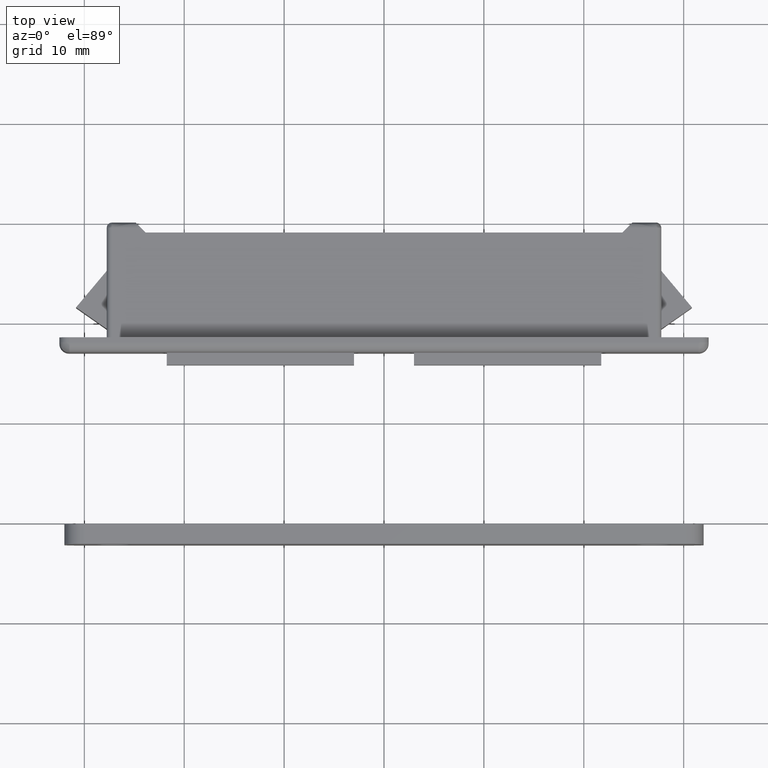
[diagram: clean part render]
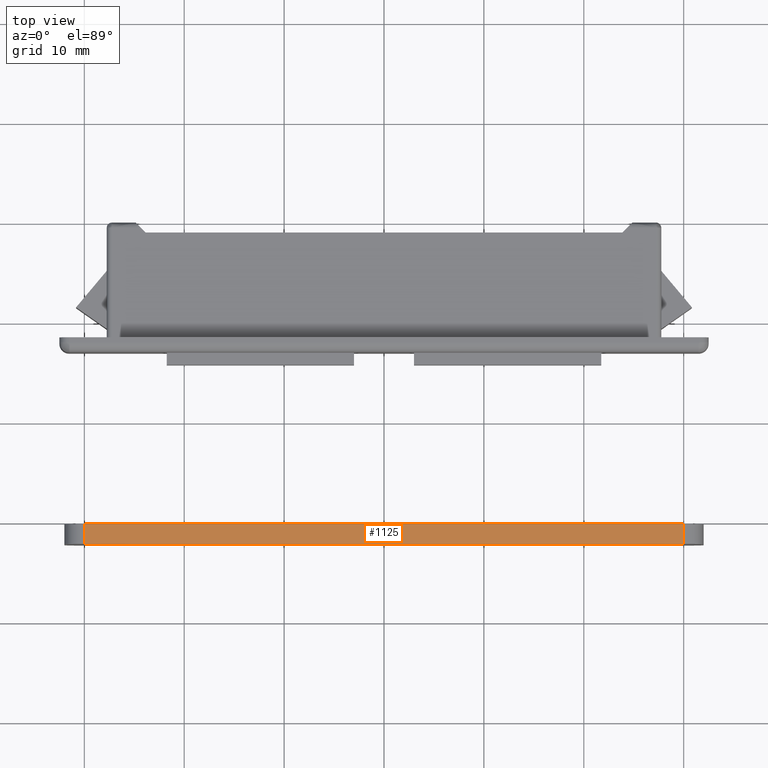
[diagram: same view with one face highlighted and labeled with its STEP entity id]
A machine part, top view. The second image highlights one B-rep face of the part: STEP entity #1125.
In plain terms, the highlighted face is a freeform B-spline surface patch.
Its self-contained STEP definition (entity closure, byte-faithful):
#1053=CARTESIAN_POINT('',(30.0,-30.187369113433899,-5.0));
#1054=VERTEX_POINT('',#1053);
#1076=CARTESIAN_POINT('',(30.0,-32.187369113433903,-5.0));
#1077=VERTEX_POINT('',#1076);
#1090=CARTESIAN_POINT('',(30.0,-32.187369113433903,-5.0));
#1091=CARTESIAN_POINT('',(30.0,-30.187369113433899,-5.0));
#1092=QUASI_UNIFORM_CURVE('',1,(#1090,#1091),.UNSPECIFIED.,.F.,.U.);
#1093=EDGE_CURVE('',#1077,#1054,#1092,.T.);
#1098=CARTESIAN_POINT('',(-32.996998294266653,-32.287270403180663,-5.0));
#1099=CARTESIAN_POINT('',(32.997001417418133,-32.287270403180663,-5.0));
#1100=CARTESIAN_POINT('',(-32.996998294266653,-30.087468252840580,-5.0));
#1101=CARTESIAN_POINT('',(32.997001417418133,-30.087468252840580,-5.0));
#1102=B_SPLINE_SURFACE_WITH_KNOTS('',1,1,((#1098,#1100),(#1099,#1101)),.UNSPECIFIED.,.F.,.F.,.U.,(2,2),(2,2),(0.0,65.993999711684779),(0.0,2.199802150340087),.UNSPECIFIED.);
#1103=CARTESIAN_POINT('',(-29.999999022615700,-30.187369113433899,-4.999999999999780));
#1104=VERTEX_POINT('',#1103);
#1105=CARTESIAN_POINT('',(-29.999999022615700,-30.187369113433899,-4.999999999999780));
#1106=CARTESIAN_POINT('',(30.0,-30.187369113433899,-5.0));
#1107=QUASI_UNIFORM_CURVE('',1,(#1105,#1106),.UNSPECIFIED.,.F.,.U.);
#1108=EDGE_CURVE('',#1104,#1054,#1107,.T.);
#1109=ORIENTED_EDGE('',*,*,#1108,.T.);
#1110=ORIENTED_EDGE('',*,*,#1093,.F.);
#1111=CARTESIAN_POINT('',(-29.999999022615700,-32.187369113433903,-4.999999999999780));
#1112=VERTEX_POINT('',#1111);
#1113=CARTESIAN_POINT('',(-29.999999022615700,-32.187369113433903,-4.999999999999780));
#1114=CARTESIAN_POINT('',(30.0,-32.187369113433903,-5.0));
#1115=QUASI_UNIFORM_CURVE('',1,(#1113,#1114),.UNSPECIFIED.,.F.,.U.);
#1116=EDGE_CURVE('',#1112,#1077,#1115,.T.);
#1117=ORIENTED_EDGE('',*,*,#1116,.F.);
#1118=CARTESIAN_POINT('',(-29.999999022615700,-32.187369113433903,-4.999999999999780));
#1119=CARTESIAN_POINT('',(-29.999999022615700,-30.187369113433899,-4.999999999999780));
#1120=QUASI_UNIFORM_CURVE('',1,(#1118,#1119),.UNSPECIFIED.,.F.,.U.);
#1121=EDGE_CURVE('',#1112,#1104,#1120,.T.);
#1122=ORIENTED_EDGE('',*,*,#1121,.T.);
#1123=EDGE_LOOP('',(#1109,#1110,#1117,#1122));
#1124=FACE_OUTER_BOUND('',#1123,.T.);
#1125=ADVANCED_FACE('',(#1124),#1102,.F.);